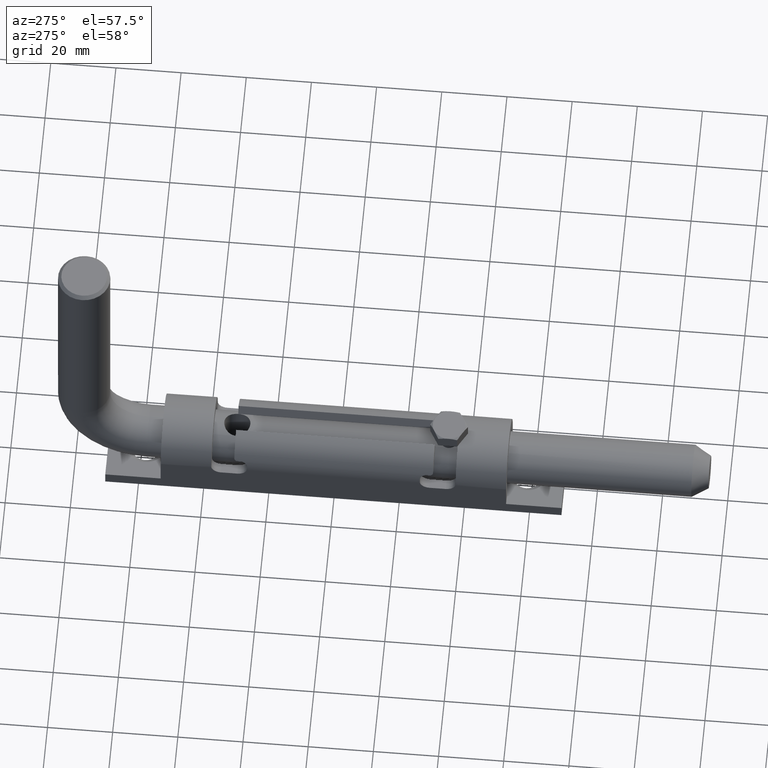
[diagram: clean part render]
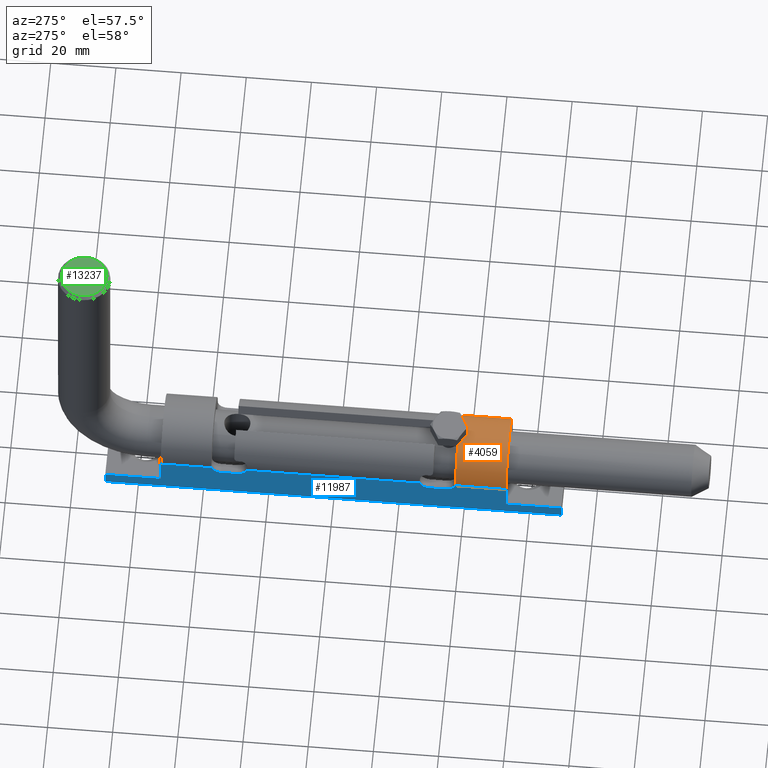
[diagram: same view with three faces highlighted in distinct colors, each labeled with its STEP entity id]
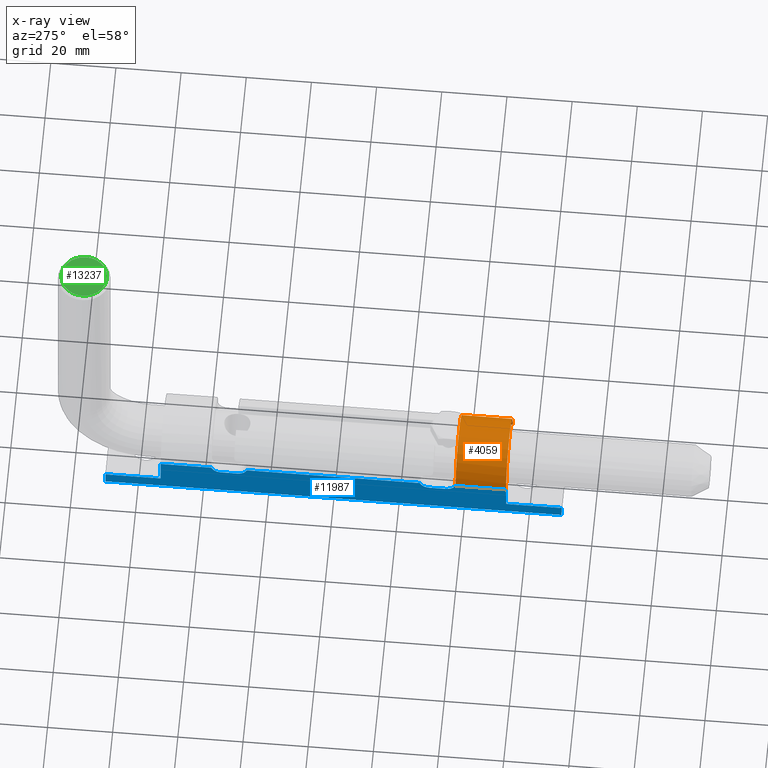
[diagram: x-ray of the same camera — body ghosted, the three highlighted faces saturated]
A machine part, auxiliary view with three faces highlighted in distinct colors.
The next image is the same camera in x-ray (body ghosted, the three faces saturated) — at least one of them is partly hidden behind the body in this view.
Their STEP definitions:

[orange] entity #4059 — the highlighted cylindrical surface (partial cylindrical patch) has radius 11.75 mm, axis along (-0, -1, -0).
#160 = EDGE_LOOP ( 'NONE', ( #9168, #14038, #928, #10401, #6459, #1957 ) ) ;
#624 = CIRCLE ( 'NONE', #6680, 11.75000000000000000 ) ;
#928 = ORIENTED_EDGE ( 'NONE', *, *, #12083, .F. ) ;
#1232 = CARTESIAN_POINT ( 'NONE',  ( -11.75000000000001066, -37.40473750965555411, 10.25000000000000888 ) ) ;
#1331 = VECTOR ( 'NONE', #11699, 1000.000000000000000 ) ;
#1567 = CARTESIAN_POINT ( 'NONE',  ( 11.74227057835120114, -37.50000000000000000, 10.74623007730182067 ) ) ;
#1749 = DIRECTION ( 'NONE',  ( 0.000000000000000000, 1.000000000000000000, 0.000000000000000000 ) ) ;
#1917 = DIRECTION ( 'NONE',  ( 0.000000000000000000, 0.000000000000000000, 1.000000000000000000 ) ) ;
#1957 = ORIENTED_EDGE ( 'NONE', *, *, #10172, .T. ) ;
#2261 = CYLINDRICAL_SURFACE ( 'NONE', #13517, 11.75000000000000000 ) ;
#2448 = CARTESIAN_POINT ( 'NONE',  ( -11.74227057835120291, -37.50000000000000000, 10.74623007730182067 ) ) ;
#2924 = CARTESIAN_POINT ( 'NONE',  ( 0.000000000000000000, 53.00000000000000000, 10.25000000000000888 ) ) ;
#4059 = ADVANCED_FACE ( 'NONE', ( #6921 ), #2261, .T. ) ;
#4291 = CARTESIAN_POINT ( 'NONE',  ( 11.72603939955857477, -37.50000000000000000, 11.00000000000000000 ) ) ;
#4356 = DIRECTION ( 'NONE',  ( -0.000000000000000000, -1.000000000000000000, -0.000000000000000000 ) ) ;
#4378 = LINE ( 'NONE', #14330, #1331 ) ;
#4738 = CARTESIAN_POINT ( 'NONE',  ( -11.72603939955857477, -37.50000000000000000, 11.00000000000000000 ) ) ;
#4959 = DIRECTION ( 'NONE',  ( 0.000000000000000000, 1.000000000000000000, 0.000000000000000000 ) ) ;
#5412 = VECTOR ( 'NONE', #9590, 1000.000000000000000 ) ;
#5535 = B_SPLINE_CURVE_WITH_KNOTS ( 'NONE', 3,
 ( #6673, #14494, #1567, #4291 ),
 .UNSPECIFIED., .F., .F.,
 ( 4, 4 ),
 ( 0.000000000000000000, 0.0007564053492936992492 ),
 .UNSPECIFIED. ) ;
#5650 = EDGE_CURVE ( 'NONE', #13449, #11841, #5535, .T. ) ;
#6311 = CARTESIAN_POINT ( 'NONE',  ( -11.75000000000000000, -37.46830962659335285, 10.49621375018322844 ) ) ;
#6459 = ORIENTED_EDGE ( 'NONE', *, *, #10801, .T. ) ;
#6673 = CARTESIAN_POINT ( 'NONE',  ( 11.74999999999998934, -37.40473750965555411, 10.25000000000000888 ) ) ;
#6680 = AXIS2_PLACEMENT_3D ( 'NONE', #8835, #4959, #9925 ) ;
#6921 = FACE_OUTER_BOUND ( 'NONE', #160, .T. ) ;
#7644 = VERTEX_POINT ( 'NONE', #13457 ) ;
#8708 = VERTEX_POINT ( 'NONE', #10567 ) ;
#8835 = CARTESIAN_POINT ( 'NONE',  ( 0.000000000000000000, -53.00000000000000000, 10.25000000000000888 ) ) ;
#9168 = ORIENTED_EDGE ( 'NONE', *, *, #11068, .F. ) ;
#9590 = DIRECTION ( 'NONE',  ( -0.000000000000000000, -1.000000000000000000, -0.000000000000000000 ) ) ;
#9925 = DIRECTION ( 'NONE',  ( 0.000000000000000000, 0.000000000000000000, 1.000000000000000000 ) ) ;
#10172 = EDGE_CURVE ( 'NONE', #11879, #7644, #624, .T. ) ;
#10216 = EDGE_CURVE ( 'NONE', #8708, #14226, #13102, .T. ) ;
#10401 = ORIENTED_EDGE ( 'NONE', *, *, #10216, .T. ) ;
#10567 = CARTESIAN_POINT ( 'NONE',  ( -11.72603939955857477, -37.50000000000000000, 11.00000000000000000 ) ) ;
#10801 = EDGE_CURVE ( 'NONE', #14226, #11879, #4378, .T. ) ;
#10843 = AXIS2_PLACEMENT_3D ( 'NONE', #14619, #1749, #1917 ) ;
#11002 = CARTESIAN_POINT ( 'NONE',  ( 11.74999999999998934, -37.40473750965555411, 10.25000000000000888 ) ) ;
#11054 = LINE ( 'NONE', #16005, #5412 ) ;
#11068 = EDGE_CURVE ( 'NONE', #13449, #7644, #11054, .T. ) ;
#11427 = CARTESIAN_POINT ( 'NONE',  ( 11.72603939955857477, -37.50000000000000000, 11.00000000000000000 ) ) ;
#11699 = DIRECTION ( 'NONE',  ( -0.000000000000000000, -1.000000000000000000, -0.000000000000000000 ) ) ;
#11841 = VERTEX_POINT ( 'NONE', #11427 ) ;
#11879 = VERTEX_POINT ( 'NONE', #14212 ) ;
#12083 = EDGE_CURVE ( 'NONE', #8708, #11841, #16042, .T. ) ;
#13102 = B_SPLINE_CURVE_WITH_KNOTS ( 'NONE', 3,
 ( #4738, #2448, #6311, #15297 ),
 .UNSPECIFIED., .F., .F.,
 ( 4, 4 ),
 ( 0.000000000000000000, 0.0007564053492937007671 ),
 .UNSPECIFIED. ) ;
#13374 = DIRECTION ( 'NONE',  ( 0.000000000000000000, 0.000000000000000000, -1.000000000000000000 ) ) ;
#13449 = VERTEX_POINT ( 'NONE', #11002 ) ;
#13457 = CARTESIAN_POINT ( 'NONE',  ( 11.74999999999998934, -53.00000000000000000, 10.25000000000000888 ) ) ;
#13517 = AXIS2_PLACEMENT_3D ( 'NONE', #2924, #4356, #13374 ) ;
#14038 = ORIENTED_EDGE ( 'NONE', *, *, #5650, .T. ) ;
#14212 = CARTESIAN_POINT ( 'NONE',  ( -11.75000000000001066, -53.00000000000000000, 10.25000000000000888 ) ) ;
#14226 = VERTEX_POINT ( 'NONE', #1232 ) ;
#14330 = CARTESIAN_POINT ( 'NONE',  ( -11.75000000000001066, 53.00000000000000000, 10.25000000000000888 ) ) ;
#14494 = CARTESIAN_POINT ( 'NONE',  ( 11.75000000000000533, -37.46830962659335285, 10.49621375018322844 ) ) ;
#14619 = CARTESIAN_POINT ( 'NONE',  ( 0.000000000000000000, -37.50000000000000000, 10.25000000000000888 ) ) ;
#15297 = CARTESIAN_POINT ( 'NONE',  ( -11.75000000000001066, -37.40473750965555411, 10.25000000000000888 ) ) ;
#16005 = CARTESIAN_POINT ( 'NONE',  ( 11.74999999999998934, 53.00000000000000000, 10.25000000000000888 ) ) ;
#16042 = CIRCLE ( 'NONE', #10843, 11.75000000000000000 ) ;

[blue] entity #11987 — the highlighted planar face has unit normal (1, 0, 0).
#41 = CARTESIAN_POINT ( 'NONE',  ( -11.74999999999999645, -29.50000000000000355, 11.00000000000000000 ) ) ;
#111 = VECTOR ( 'NONE', #12631, 1000.000000000000000 ) ;
#147 = CARTESIAN_POINT ( 'NONE',  ( -11.75000000000000355, 34.49999999999999289, 11.00000000000000000 ) ) ;
#382 = DIRECTION ( 'NONE',  ( -0.000000000000000000, -0.000000000000000000, -1.000000000000000000 ) ) ;
#519 = LINE ( 'NONE', #1272, #6193 ) ;
#564 = VERTEX_POINT ( 'NONE', #8615 ) ;
#845 = EDGE_LOOP ( 'NONE', ( #10650, #15351, #2921, #2179, #16496, #5898, #16018, #1206, #16524, #2334, #10983, #14243, #4540, #4931, #11686, #9518 ) ) ;
#893 = DIRECTION ( 'NONE',  ( 0.000000000000000000, -1.000000000000000000, 0.000000000000000000 ) ) ;
#1206 = ORIENTED_EDGE ( 'NONE', *, *, #10342, .F. ) ;
#1232 = CARTESIAN_POINT ( 'NONE',  ( -11.75000000000001066, -37.40473750965555411, 10.25000000000000888 ) ) ;
#1272 = CARTESIAN_POINT ( 'NONE',  ( -11.75000000000001066, -37.50000000000000000, 8.000000000000000000 ) ) ;
#1290 = VERTEX_POINT ( 'NONE', #4594 ) ;
#1331 = VECTOR ( 'NONE', #11699, 1000.000000000000000 ) ;
#1356 = EDGE_CURVE ( 'NONE', #10821, #5665, #13824, .T. ) ;
#1444 = CARTESIAN_POINT ( 'NONE',  ( -11.74999999999999645, -34.49999999999999289, 11.00000000000000000 ) ) ;
#1490 = VECTOR ( 'NONE', #382, 1000.000000000000000 ) ;
#2124 = VERTEX_POINT ( 'NONE', #3557 ) ;
#2179 = ORIENTED_EDGE ( 'NONE', *, *, #6187, .F. ) ;
#2286 = DIRECTION ( 'NONE',  ( 0.000000000000000000, 1.000000000000000000, 0.000000000000000000 ) ) ;
#2334 = ORIENTED_EDGE ( 'NONE', *, *, #12324, .T. ) ;
#2743 = DIRECTION ( 'NONE',  ( 1.000000000000000000, 1.239088197126290817E-16, -0.000000000000000000 ) ) ;
#2889 = VERTEX_POINT ( 'NONE', #4411 ) ;
#2921 = ORIENTED_EDGE ( 'NONE', *, *, #12593, .F. ) ;
#3084 = DIRECTION ( 'NONE',  ( 1.239088197126290570E-16, -1.000000000000000000, 0.000000000000000000 ) ) ;
#3111 = LINE ( 'NONE', #4344, #1490 ) ;
#3153 = DIRECTION ( 'NONE',  ( 1.239088197126290570E-16, -1.000000000000000000, 0.000000000000000000 ) ) ;
#3184 = EDGE_CURVE ( 'NONE', #14226, #564, #13172, .T. ) ;
#3475 = LINE ( 'NONE', #6843, #11576 ) ;
#3557 = CARTESIAN_POINT ( 'NONE',  ( -11.75000000000001066, 34.49999999999999289, 8.000000000000000000 ) ) ;
#3692 = DIRECTION ( 'NONE',  ( 1.000000000000000000, 1.239088197126290817E-16, -0.000000000000000000 ) ) ;
#3788 = CARTESIAN_POINT ( 'NONE',  ( -11.75000000000000888, 53.00000000000000000, 2.000000000000000000 ) ) ;
#3789 = VERTEX_POINT ( 'NONE', #3788 ) ;
#3860 = VECTOR ( 'NONE', #3084, 1000.000000000000000 ) ;
#3941 = LINE ( 'NONE', #5482, #10410 ) ;
#3981 = EDGE_CURVE ( 'NONE', #5638, #2889, #3475, .T. ) ;
#4035 = DIRECTION ( 'NONE',  ( 1.000000000000000000, 1.239088197126290817E-16, -0.000000000000000000 ) ) ;
#4163 = EDGE_CURVE ( 'NONE', #10821, #8528, #14979, .T. ) ;
#4344 = CARTESIAN_POINT ( 'NONE',  ( -11.75000000000000888, 70.00000000000000000, 2.000000000000000000 ) ) ;
#4378 = LINE ( 'NONE', #14330, #1331 ) ;
#4393 = EDGE_CURVE ( 'NONE', #14409, #8528, #8521, .T. ) ;
#4411 = CARTESIAN_POINT ( 'NONE',  ( -11.74999999999999112, -70.00000000000000000, 2.000000000000000000 ) ) ;
#4540 = ORIENTED_EDGE ( 'NONE', *, *, #12492, .T. ) ;
#4552 = AXIS2_PLACEMENT_3D ( 'NONE', #1444, #2743, #15482 ) ;
#4594 = CARTESIAN_POINT ( 'NONE',  ( -11.74999999999999112, -70.00000000000000000, -2.000000000000000000 ) ) ;
#4744 = CIRCLE ( 'NONE', #16557, 3.000000000000002665 ) ;
#4784 = FACE_OUTER_BOUND ( 'NONE', #845, .T. ) ;
#4788 = CARTESIAN_POINT ( 'NONE',  ( -11.75000000000001066, -29.50000000000000355, 8.000000000000000000 ) ) ;
#4831 = CARTESIAN_POINT ( 'NONE',  ( -11.75000000000000888, 70.00000000000000000, 2.000000000000000000 ) ) ;
#4868 = CARTESIAN_POINT ( 'NONE',  ( -11.75000000000001066, -53.00000000000000000, 10.25000000000000888 ) ) ;
#4931 = ORIENTED_EDGE ( 'NONE', *, *, #4393, .T. ) ;
#5145 = DIRECTION ( 'NONE',  ( 1.000000000000000000, 1.239088197126290817E-16, -0.000000000000000000 ) ) ;
#5200 = DIRECTION ( 'NONE',  ( 0.000000000000000000, 1.000000000000000000, 0.000000000000000000 ) ) ;
#5280 = LINE ( 'NONE', #5308, #10930 ) ;
#5308 = CARTESIAN_POINT ( 'NONE',  ( -11.75000000000001066, 53.00000000000000000, 10.25000000000000888 ) ) ;
#5333 = DIRECTION ( 'NONE',  ( -1.239088197126290817E-16, 1.000000000000000000, 0.000000000000000000 ) ) ;
#5395 = EDGE_CURVE ( 'NONE', #16492, #3789, #14770, .T. ) ;
#5434 = CARTESIAN_POINT ( 'NONE',  ( -11.75000000000000888, 70.00000000000000000, -2.000000000000000000 ) ) ;
#5482 = CARTESIAN_POINT ( 'NONE',  ( -11.75000000000001066, 53.00000000000000000, 10.25000000000000888 ) ) ;
#5638 = VERTEX_POINT ( 'NONE', #7955 ) ;
#5656 = AXIS2_PLACEMENT_3D ( 'NONE', #41, #5145, #10266 ) ;
#5665 = VERTEX_POINT ( 'NONE', #8412 ) ;
#5898 = ORIENTED_EDGE ( 'NONE', *, *, #7136, .T. ) ;
#6005 = CARTESIAN_POINT ( 'NONE',  ( -11.75000000000001066, 37.50000000000000000, 8.000000000000000000 ) ) ;
#6167 = LINE ( 'NONE', #8042, #12508 ) ;
#6187 = EDGE_CURVE ( 'NONE', #3789, #8513, #5280, .T. ) ;
#6193 = VECTOR ( 'NONE', #5200, 1000.000000000000000 ) ;
#6604 = DIRECTION ( 'NONE',  ( -1.416100796715759877E-16, -0.000000000000000000, 1.000000000000000000 ) ) ;
#6843 = CARTESIAN_POINT ( 'NONE',  ( -11.75000000000000888, 70.00000000000000000, 2.000000000000000000 ) ) ;
#6977 = VERTEX_POINT ( 'NONE', #5434 ) ;
#7136 = EDGE_CURVE ( 'NONE', #16492, #6977, #3111, .T. ) ;
#7241 = AXIS2_PLACEMENT_3D ( 'NONE', #8725, #3692, #2286 ) ;
#7379 = CARTESIAN_POINT ( 'NONE',  ( -11.75000000000001066, 53.00000000000000000, 10.25000000000000888 ) ) ;
#7521 = EDGE_CURVE ( 'NONE', #2124, #13199, #4744, .T. ) ;
#7910 = DIRECTION ( 'NONE',  ( 1.000000000000000000, 1.239088197126290817E-16, -0.000000000000000000 ) ) ;
#7955 = CARTESIAN_POINT ( 'NONE',  ( -11.74999999999999289, -52.99999999999999289, 2.000000000000000000 ) ) ;
#8042 = CARTESIAN_POINT ( 'NONE',  ( -11.74999999999999112, -70.00000000000000000, 2.000000000000000000 ) ) ;
#8333 = AXIS2_PLACEMENT_3D ( 'NONE', #13146, #7910, #5333 ) ;
#8412 = CARTESIAN_POINT ( 'NONE',  ( -11.75000000000001066, 29.50000000000000355, 8.000000000000000000 ) ) ;
#8513 = VERTEX_POINT ( 'NONE', #7379 ) ;
#8521 = CIRCLE ( 'NONE', #5656, 2.999999999999999112 ) ;
#8528 = VERTEX_POINT ( 'NONE', #16265 ) ;
#8599 = LINE ( 'NONE', #4868, #111 ) ;
#8615 = CARTESIAN_POINT ( 'NONE',  ( -11.75000000000001066, -34.49999999999999289, 8.000000000000000000 ) ) ;
#8725 = CARTESIAN_POINT ( 'NONE',  ( -11.75000000000000355, 29.50000000000000355, 11.00000000000000000 ) ) ;
#9518 = ORIENTED_EDGE ( 'NONE', *, *, #1356, .T. ) ;
#9766 = DIRECTION ( 'NONE',  ( -0.000000000000000000, -1.000000000000000000, -0.000000000000000000 ) ) ;
#10144 = LINE ( 'NONE', #13366, #3860 ) ;
#10266 = DIRECTION ( 'NONE',  ( 0.000000000000000000, 1.000000000000000000, 0.000000000000000000 ) ) ;
#10342 = EDGE_CURVE ( 'NONE', #2889, #1290, #6167, .T. ) ;
#10410 = VECTOR ( 'NONE', #16091, 1000.000000000000000 ) ;
#10473 = DIRECTION ( 'NONE',  ( 0.000000000000000000, 1.000000000000000000, 0.000000000000000000 ) ) ;
#10528 = DIRECTION ( 'NONE',  ( -0.000000000000000000, -0.000000000000000000, -1.000000000000000000 ) ) ;
#10650 = ORIENTED_EDGE ( 'NONE', *, *, #11221, .F. ) ;
#10674 = PLANE ( 'NONE',  #8333 ) ;
#10801 = EDGE_CURVE ( 'NONE', #14226, #11879, #4378, .T. ) ;
#10821 = VERTEX_POINT ( 'NONE', #16627 ) ;
#10930 = VECTOR ( 'NONE', #6604, 1000.000000000000000 ) ;
#10983 = ORIENTED_EDGE ( 'NONE', *, *, #10801, .F. ) ;
#11221 = EDGE_CURVE ( 'NONE', #2124, #5665, #15064, .T. ) ;
#11469 = CARTESIAN_POINT ( 'NONE',  ( -11.75000000000001066, 37.40473750965556121, 10.25000000000000888 ) ) ;
#11576 = VECTOR ( 'NONE', #3153, 1000.000000000000000 ) ;
#11649 = VECTOR ( 'NONE', #893, 1000.000000000000000 ) ;
#11686 = ORIENTED_EDGE ( 'NONE', *, *, #4163, .F. ) ;
#11699 = DIRECTION ( 'NONE',  ( -0.000000000000000000, -1.000000000000000000, -0.000000000000000000 ) ) ;
#11879 = VERTEX_POINT ( 'NONE', #14212 ) ;
#11987 = ADVANCED_FACE ( 'NONE', ( #4784 ), #10674, .F. ) ;
#12324 = EDGE_CURVE ( 'NONE', #5638, #11879, #8599, .T. ) ;
#12492 = EDGE_CURVE ( 'NONE', #564, #14409, #519, .T. ) ;
#12508 = VECTOR ( 'NONE', #10528, 1000.000000000000000 ) ;
#12593 = EDGE_CURVE ( 'NONE', #8513, #13199, #3941, .T. ) ;
#12631 = DIRECTION ( 'NONE',  ( -1.416100796715759877E-16, -0.000000000000000000, 1.000000000000000000 ) ) ;
#13146 = CARTESIAN_POINT ( 'NONE',  ( -11.75000000000000888, 70.00000000000000000, 2.000000000000000000 ) ) ;
#13172 = CIRCLE ( 'NONE', #4552, 3.000000000000002665 ) ;
#13199 = VERTEX_POINT ( 'NONE', #11469 ) ;
#13366 = CARTESIAN_POINT ( 'NONE',  ( -11.75000000000000888, 70.00000000000000000, -2.000000000000000000 ) ) ;
#13824 = CIRCLE ( 'NONE', #7241, 2.999999999999999112 ) ;
#13833 = DIRECTION ( 'NONE',  ( 1.239088197126290570E-16, -1.000000000000000000, 0.000000000000000000 ) ) ;
#14212 = CARTESIAN_POINT ( 'NONE',  ( -11.75000000000001066, -53.00000000000000000, 10.25000000000000888 ) ) ;
#14226 = VERTEX_POINT ( 'NONE', #1232 ) ;
#14243 = ORIENTED_EDGE ( 'NONE', *, *, #3184, .T. ) ;
#14330 = CARTESIAN_POINT ( 'NONE',  ( -11.75000000000001066, 53.00000000000000000, 10.25000000000000888 ) ) ;
#14370 = VECTOR ( 'NONE', #9766, 1000.000000000000000 ) ;
#14409 = VERTEX_POINT ( 'NONE', #4788 ) ;
#14549 = VECTOR ( 'NONE', #13833, 1000.000000000000000 ) ;
#14770 = LINE ( 'NONE', #4831, #14549 ) ;
#14894 = CARTESIAN_POINT ( 'NONE',  ( -11.75000000000001066, 53.00000000000000000, 10.25000000000000888 ) ) ;
#14979 = LINE ( 'NONE', #14894, #14370 ) ;
#15064 = LINE ( 'NONE', #6005, #11649 ) ;
#15351 = ORIENTED_EDGE ( 'NONE', *, *, #7521, .T. ) ;
#15482 = DIRECTION ( 'NONE',  ( 0.000000000000000000, 1.000000000000000000, 0.000000000000000000 ) ) ;
#15893 = CARTESIAN_POINT ( 'NONE',  ( -11.75000000000000888, 70.00000000000000000, 2.000000000000000000 ) ) ;
#16018 = ORIENTED_EDGE ( 'NONE', *, *, #16429, .T. ) ;
#16091 = DIRECTION ( 'NONE',  ( -0.000000000000000000, -1.000000000000000000, -0.000000000000000000 ) ) ;
#16265 = CARTESIAN_POINT ( 'NONE',  ( -11.75000000000001066, -26.59526249034443168, 10.25000000000000888 ) ) ;
#16429 = EDGE_CURVE ( 'NONE', #6977, #1290, #10144, .T. ) ;
#16492 = VERTEX_POINT ( 'NONE', #15893 ) ;
#16496 = ORIENTED_EDGE ( 'NONE', *, *, #5395, .F. ) ;
#16524 = ORIENTED_EDGE ( 'NONE', *, *, #3981, .F. ) ;
#16557 = AXIS2_PLACEMENT_3D ( 'NONE', #147, #4035, #10473 ) ;
#16627 = CARTESIAN_POINT ( 'NONE',  ( -11.75000000000001066, 26.59526249034443524, 10.25000000000000888 ) ) ;

[green] entity #13237 — the highlighted planar face has unit normal (0, 0, 1).
#1339 = PLANE ( 'NONE',  #11255 ) ;
#2400 = CARTESIAN_POINT ( 'NONE',  ( 6.999999999999978684, 192.0000000000000000, 84.99999999999998579 ) ) ;
#3939 = DIRECTION ( 'NONE',  ( 0.000000000000000000, 0.000000000000000000, 1.000000000000000000 ) ) ;
#5567 = AXIS2_PLACEMENT_3D ( 'NONE', #14900, #9954, #9894 ) ;
#6172 = EDGE_LOOP ( 'NONE', ( #11765 ) ) ;
#6971 = FACE_OUTER_BOUND ( 'NONE', #6172, .T. ) ;
#9719 = VERTEX_POINT ( 'NONE', #2400 ) ;
#9894 = DIRECTION ( 'NONE',  ( 1.000000000000000000, 0.000000000000000000, 0.000000000000000000 ) ) ;
#9954 = DIRECTION ( 'NONE',  ( 0.000000000000000000, 0.000000000000000000, 1.000000000000000000 ) ) ;
#10435 = DIRECTION ( 'NONE',  ( 0.000000000000000000, -1.000000000000000000, 0.000000000000000000 ) ) ;
#10991 = CIRCLE ( 'NONE', #5567, 6.999999999999978684 ) ;
#11255 = AXIS2_PLACEMENT_3D ( 'NONE', #13017, #3939, #10435 ) ;
#11765 = ORIENTED_EDGE ( 'NONE', *, *, #14058, .T. ) ;
#13017 = CARTESIAN_POINT ( 'NONE',  ( 0.000000000000000000, 192.0000000000000000, 84.99999999999998579 ) ) ;
#13237 = ADVANCED_FACE ( 'NONE', ( #6971 ), #1339, .T. ) ;
#14058 = EDGE_CURVE ( 'NONE', #9719, #9719, #10991, .T. ) ;
#14900 = CARTESIAN_POINT ( 'NONE',  ( 0.000000000000000000, 192.0000000000000000, 84.99999999999998579 ) ) ;